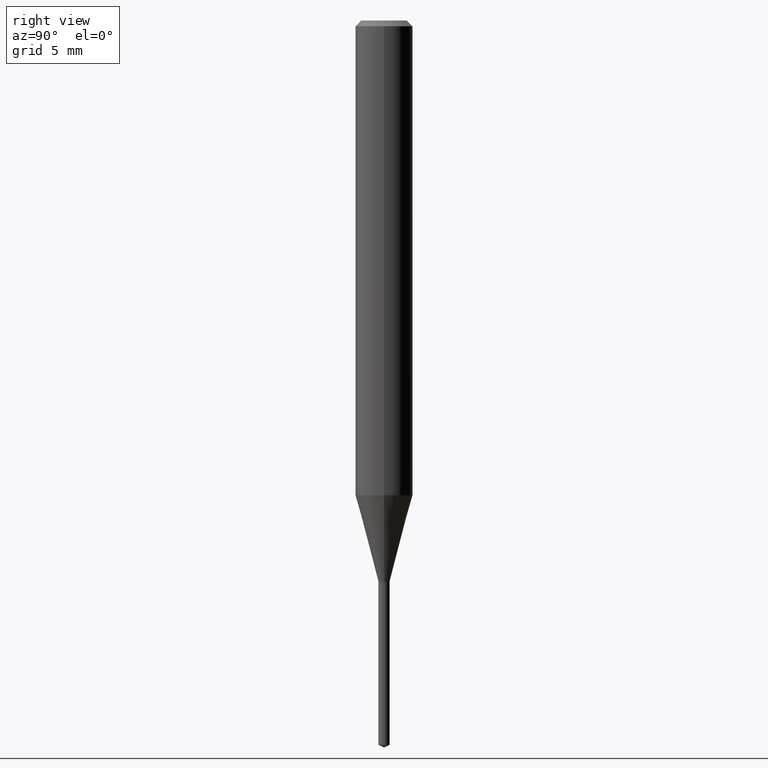
[diagram: clean part render]
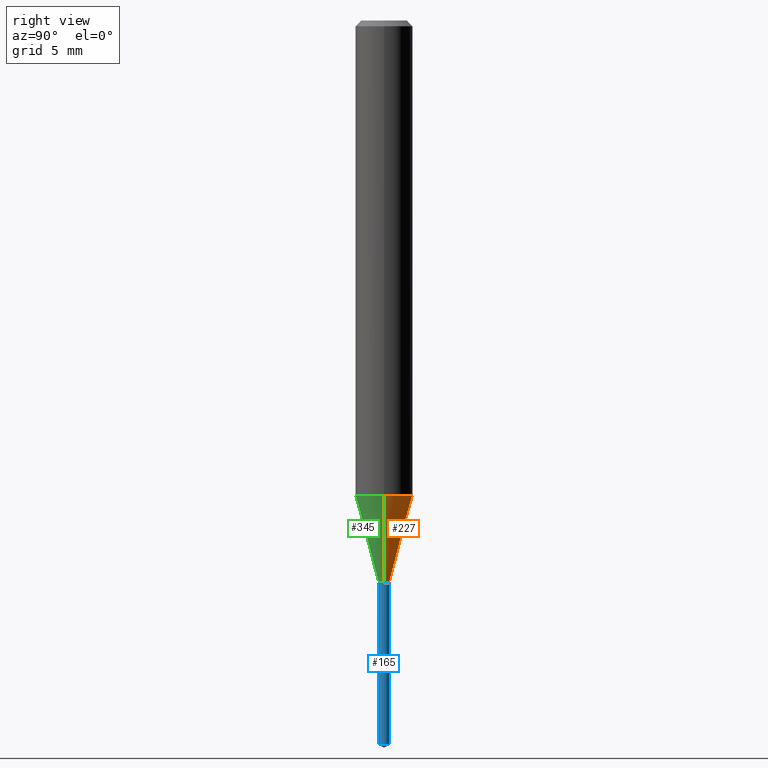
[diagram: same view with three faces highlighted in distinct colors, each labeled with its STEP entity id]
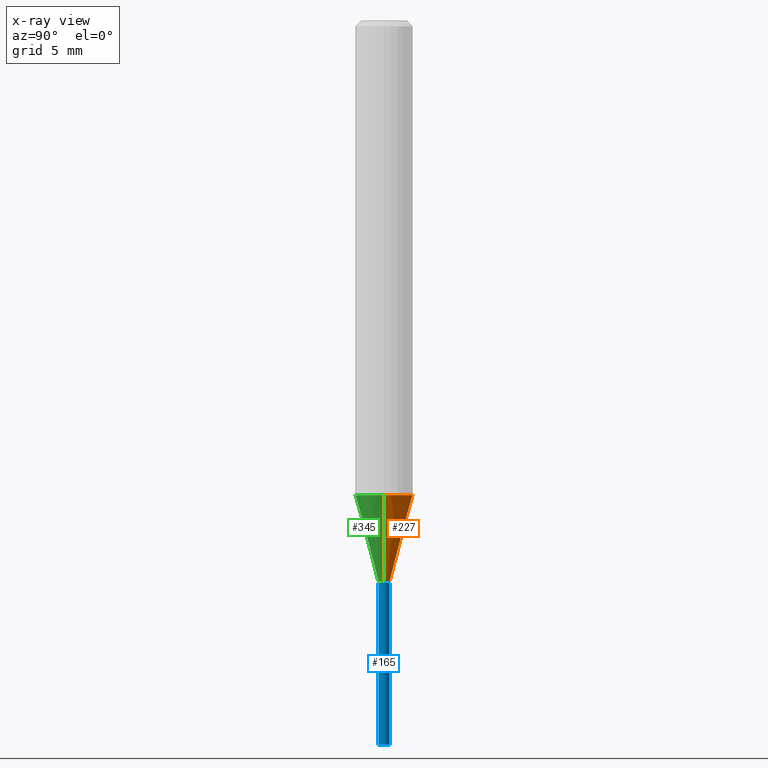
[diagram: x-ray of the same camera — body ghosted, the three highlighted faces saturated]
A machine part, right view with three faces highlighted in distinct colors.
The next image is the same camera in x-ray (body ghosted, the three faces saturated) — at least one of them is partly hidden behind the body in this view.
Their STEP definitions:

[orange] entity #227 — the highlighted conical surface has half-angle 15 deg.
#1 = VERTEX_POINT ( 'NONE', #415 ) ;
#10 = EDGE_CURVE ( 'NONE', #300, #1, #203, .T. ) ;
#12 = ORIENTED_EDGE ( 'NONE', *, *, #171, .T. ) ;
#37 = CARTESIAN_POINT ( 'NONE',  ( 0.05905000000000011628, -3.823221607293418566E-15, -0.9769141891808567069 ) ) ;
#53 = AXIS2_PLACEMENT_3D ( 'NONE', #135, #296, #137 ) ;
#75 = DIRECTION ( 'NONE',  ( 1.000000000000000000, -6.982962677686266711E-15, 0.000000000000000000 ) ) ;
#85 = DIRECTION ( 'NONE',  ( 0.2588190451025213501, 1.565188264969621968E-15, 0.9659258262890682012 ) ) ;
#97 = AXIS2_PLACEMENT_3D ( 'NONE', #141, #434, #409 ) ;
#104 = FACE_OUTER_BOUND ( 'NONE', #338, .T. ) ;
#111 = DIRECTION ( 'NONE',  ( -2.445468806185136597E-29, 3.491481338843145583E-15, 1.000000000000000000 ) ) ;
#135 = CARTESIAN_POINT ( 'NONE',  ( 2.822071002337647144E-29, -4.029169465024989587E-15, -1.153999999999999915 ) ) ;
#137 = DIRECTION ( 'NONE',  ( 1.000000000000000000, -6.982962677686266711E-15, 0.000000000000000000 ) ) ;
#141 = CARTESIAN_POINT ( 'NONE',  ( 2.822071002337647144E-29, -4.029169465024989587E-15, -1.153999999999999915 ) ) ;
#143 = ORIENTED_EDGE ( 'NONE', *, *, #459, .F. ) ;
#171 = EDGE_CURVE ( 'NONE', #342, #1, #266, .T. ) ;
#172 = DIRECTION ( 'NONE',  ( -0.2588190451025213501, 5.211531920934551042E-15, 0.9659258262890682012 ) ) ;
#191 = CARTESIAN_POINT ( 'NONE',  ( -0.01159999999999999920, -3.951983729685082876E-15, -1.153999999999999915 ) ) ;
#203 = CIRCLE ( 'NONE', #258, 0.05905000000000011628 ) ;
#227 = ADVANCED_FACE ( 'NONE', ( #104 ), #268, .T. ) ;
#242 = VECTOR ( 'NONE', #172, 39.37007874015747433 ) ;
#243 = ORIENTED_EDGE ( 'NONE', *, *, #10, .F. ) ;
#258 = AXIS2_PLACEMENT_3D ( 'NONE', #413, #111, #75 ) ;
#266 = LINE ( 'NONE', #375, #242 ) ;
#268 = CONICAL_SURFACE ( 'NONE', #97, 0.01159999999999999920, 0.2617993877991500740 ) ;
#272 = EDGE_CURVE ( 'NONE', #438, #342, #484, .T. ) ;
#279 = VECTOR ( 'NONE', #85, 39.37007874015747433 ) ;
#283 = CARTESIAN_POINT ( 'NONE',  ( 0.01159999999999999920, -4.110171832086150508E-15, -1.153999999999999915 ) ) ;
#296 = DIRECTION ( 'NONE',  ( -2.445468806185136597E-29, 3.491481338843145583E-15, 1.000000000000000000 ) ) ;
#300 = VERTEX_POINT ( 'NONE', #37 ) ;
#338 = EDGE_LOOP ( 'NONE', ( #380, #12, #243, #143 ) ) ;
#342 = VERTEX_POINT ( 'NONE', #191 ) ;
#356 = LINE ( 'NONE', #283, #279 ) ;
#375 = CARTESIAN_POINT ( 'NONE',  ( -0.01159999999999999920, -3.946746507676818365E-15, -1.153999999999999915 ) ) ;
#380 = ORIENTED_EDGE ( 'NONE', *, *, #272, .T. ) ;
#409 = DIRECTION ( 'NONE',  ( 1.000000000000000000, -6.982962677686266711E-15, 0.000000000000000000 ) ) ;
#413 = CARTESIAN_POINT ( 'NONE',  ( 2.389013175961430346E-29, -3.410877661176043645E-15, -0.9769141891808567069 ) ) ;
#415 = CARTESIAN_POINT ( 'NONE',  ( -0.05905000000000011628, -2.991302175709703364E-15, -0.9769141891808567069 ) ) ;
#434 = DIRECTION ( 'NONE',  ( -2.445468806185136597E-29, 3.491481338843145583E-15, 1.000000000000000000 ) ) ;
#438 = VERTEX_POINT ( 'NONE', #460 ) ;
#459 = EDGE_CURVE ( 'NONE', #438, #300, #356, .T. ) ;
#460 = CARTESIAN_POINT ( 'NONE',  ( 0.01159999999999999920, -4.110171832086150508E-15, -1.153999999999999915 ) ) ;
#484 = CIRCLE ( 'NONE', #53, 0.01159999999999999920 ) ;

[blue] entity #165 — the highlighted cylindrical surface (edge-blend (fillet) strip) has radius 0.2946 mm, axis along (-0, 0, 1).
#17 = EDGE_CURVE ( 'NONE', #183, #180, #236, .T. ) ;
#32 = CYLINDRICAL_SURFACE ( 'NONE', #349, 0.01159999999999999920 ) ;
#35 = EDGE_CURVE ( 'NONE', #441, #180, #367, .T. ) ;
#60 = AXIS2_PLACEMENT_3D ( 'NONE', #422, #446, #154 ) ;
#66 = CARTESIAN_POINT ( 'NONE',  ( 8.242295734820810070E-17, 0.01159999999999595729, -1.157499999999999973 ) ) ;
#67 = DIRECTION ( 'NONE',  ( -2.443412120811339220E-29, 3.494426629357685076E-15, 1.000000000000000000 ) ) ;
#77 = LINE ( 'NONE', #275, #278 ) ;
#79 = DIRECTION ( 'NONE',  ( -2.443412120811338940E-29, 3.494426629357684682E-15, 1.000000000000000000 ) ) ;
#80 = VECTOR ( 'NONE', #79, 39.37007874015748143 ) ;
#99 = AXIS2_PLACEMENT_3D ( 'NONE', #416, #67, #490 ) ;
#105 = EDGE_CURVE ( 'NONE', #196, #441, #77, .T. ) ;
#154 = DIRECTION ( 'NONE',  ( -6.982962677686266711E-15, -1.000000000000000000, 0.000000000000000000 ) ) ;
#165 = ADVANCED_FACE ( 'NONE', ( #341 ), #32, .T. ) ;
#180 = VERTEX_POINT ( 'NONE', #66 ) ;
#183 = VERTEX_POINT ( 'NONE', #339 ) ;
#185 = CARTESIAN_POINT ( 'NONE',  ( 2.830630143159295633E-29, -4.041389649710940900E-15, -1.157499999999999973 ) ) ;
#196 = VERTEX_POINT ( 'NONE', #483 ) ;
#228 = CARTESIAN_POINT ( 'NONE',  ( -8.100236706113237413E-17, -0.01160000000000404284, -1.157499999999999973 ) ) ;
#229 = ORIENTED_EDGE ( 'NONE', *, *, #35, .F. ) ;
#236 = LINE ( 'NONE', #390, #80 ) ;
#265 = ORIENTED_EDGE ( 'NONE', *, *, #330, .T. ) ;
#275 = CARTESIAN_POINT ( 'NONE',  ( -8.100236706113237413E-17, -0.01160000000000404284, -1.157499999999999973 ) ) ;
#278 = VECTOR ( 'NONE', #461, 39.37007874015748143 ) ;
#297 = ORIENTED_EDGE ( 'NONE', *, *, #105, .F. ) ;
#330 = EDGE_CURVE ( 'NONE', #196, #183, #358, .T. ) ;
#333 = DIRECTION ( 'NONE',  ( -2.443412120811339220E-29, 3.494426629357685076E-15, 1.000000000000000000 ) ) ;
#339 = CARTESIAN_POINT ( 'NONE',  ( 8.242295734820805139E-17, 0.01159999999999479503, -1.490690831165402130 ) ) ;
#341 = FACE_OUTER_BOUND ( 'NONE', #384, .T. ) ;
#349 = AXIS2_PLACEMENT_3D ( 'NONE', #185, #333, #408 ) ;
#358 = CIRCLE ( 'NONE', #99, 0.01159999999999999920 ) ;
#367 = CIRCLE ( 'NONE', #60, 0.01159999999999999920 ) ;
#370 = ORIENTED_EDGE ( 'NONE', *, *, #17, .T. ) ;
#384 = EDGE_LOOP ( 'NONE', ( #265, #370, #229, #297 ) ) ;
#390 = CARTESIAN_POINT ( 'NONE',  ( 8.242295734819991627E-17, 0.01159999999999595729, -1.157499999999999973 ) ) ;
#408 = DIRECTION ( 'NONE',  ( -6.982962677686266711E-15, -1.000000000000000000, 0.000000000000000000 ) ) ;
#416 = CARTESIAN_POINT ( 'NONE',  ( 3.644752658572043602E-29, -5.205700562793141956E-15, -1.490690831165402130 ) ) ;
#422 = CARTESIAN_POINT ( 'NONE',  ( 2.830630143159295633E-29, -4.041389649710940900E-15, -1.157499999999999973 ) ) ;
#441 = VERTEX_POINT ( 'NONE', #228 ) ;
#446 = DIRECTION ( 'NONE',  ( -2.443412120811339220E-29, 3.494426629357685076E-15, 1.000000000000000000 ) ) ;
#461 = DIRECTION ( 'NONE',  ( -2.443412120811338940E-29, 3.494426629357684682E-15, 1.000000000000000000 ) ) ;
#483 = CARTESIAN_POINT ( 'NONE',  ( -8.100236706112422668E-17, -0.01160000000000520337, -1.490690831165402130 ) ) ;
#490 = DIRECTION ( 'NONE',  ( -6.982962677686266711E-15, -1.000000000000000000, 0.000000000000000000 ) ) ;

[green] entity #345 — the highlighted conical surface has half-angle 15 deg.
#1 = VERTEX_POINT ( 'NONE', #415 ) ;
#18 = CIRCLE ( 'NONE', #469, 0.05905000000000011628 ) ;
#19 = DIRECTION ( 'NONE',  ( -2.445468806185136597E-29, 3.491481338843145583E-15, 1.000000000000000000 ) ) ;
#36 = ORIENTED_EDGE ( 'NONE', *, *, #471, .F. ) ;
#37 = CARTESIAN_POINT ( 'NONE',  ( 0.05905000000000011628, -3.823221607293418566E-15, -0.9769141891808567069 ) ) ;
#39 = DIRECTION ( 'NONE',  ( 1.000000000000000000, -6.982962677686266711E-15, 0.000000000000000000 ) ) ;
#78 = DIRECTION ( 'NONE',  ( -2.445468806185136597E-29, 3.491481338843145583E-15, 1.000000000000000000 ) ) ;
#85 = DIRECTION ( 'NONE',  ( 0.2588190451025213501, 1.565188264969621968E-15, 0.9659258262890682012 ) ) ;
#100 = ORIENTED_EDGE ( 'NONE', *, *, #459, .T. ) ;
#107 = CARTESIAN_POINT ( 'NONE',  ( 2.822071002337647144E-29, -4.029169465024989587E-15, -1.153999999999999915 ) ) ;
#140 = CIRCLE ( 'NONE', #162, 0.01159999999999999920 ) ;
#162 = AXIS2_PLACEMENT_3D ( 'NONE', #366, #335, #476 ) ;
#171 = EDGE_CURVE ( 'NONE', #342, #1, #266, .T. ) ;
#172 = DIRECTION ( 'NONE',  ( -0.2588190451025213501, 5.211531920934551042E-15, 0.9659258262890682012 ) ) ;
#191 = CARTESIAN_POINT ( 'NONE',  ( -0.01159999999999999920, -3.951983729685082876E-15, -1.153999999999999915 ) ) ;
#209 = CARTESIAN_POINT ( 'NONE',  ( 2.389013175961430346E-29, -3.410877661176043645E-15, -0.9769141891808567069 ) ) ;
#233 = EDGE_LOOP ( 'NONE', ( #403, #276, #100, #36 ) ) ;
#242 = VECTOR ( 'NONE', #172, 39.37007874015747433 ) ;
#266 = LINE ( 'NONE', #375, #242 ) ;
#267 = EDGE_CURVE ( 'NONE', #342, #438, #140, .T. ) ;
#276 = ORIENTED_EDGE ( 'NONE', *, *, #267, .T. ) ;
#279 = VECTOR ( 'NONE', #85, 39.37007874015747433 ) ;
#283 = CARTESIAN_POINT ( 'NONE',  ( 0.01159999999999999920, -4.110171832086150508E-15, -1.153999999999999915 ) ) ;
#300 = VERTEX_POINT ( 'NONE', #37 ) ;
#335 = DIRECTION ( 'NONE',  ( -2.445468806185136597E-29, 3.491481338843145583E-15, 1.000000000000000000 ) ) ;
#340 = CONICAL_SURFACE ( 'NONE', #462, 0.01159999999999999920, 0.2617993877991500740 ) ;
#342 = VERTEX_POINT ( 'NONE', #191 ) ;
#345 = ADVANCED_FACE ( 'NONE', ( #379 ), #340, .T. ) ;
#356 = LINE ( 'NONE', #283, #279 ) ;
#366 = CARTESIAN_POINT ( 'NONE',  ( 2.822071002337647144E-29, -4.029169465024989587E-15, -1.153999999999999915 ) ) ;
#375 = CARTESIAN_POINT ( 'NONE',  ( -0.01159999999999999920, -3.946746507676818365E-15, -1.153999999999999915 ) ) ;
#379 = FACE_OUTER_BOUND ( 'NONE', #233, .T. ) ;
#403 = ORIENTED_EDGE ( 'NONE', *, *, #171, .F. ) ;
#415 = CARTESIAN_POINT ( 'NONE',  ( -0.05905000000000011628, -2.991302175709703364E-15, -0.9769141891808567069 ) ) ;
#421 = DIRECTION ( 'NONE',  ( 1.000000000000000000, -6.982962677686266711E-15, 0.000000000000000000 ) ) ;
#438 = VERTEX_POINT ( 'NONE', #460 ) ;
#459 = EDGE_CURVE ( 'NONE', #438, #300, #356, .T. ) ;
#460 = CARTESIAN_POINT ( 'NONE',  ( 0.01159999999999999920, -4.110171832086150508E-15, -1.153999999999999915 ) ) ;
#462 = AXIS2_PLACEMENT_3D ( 'NONE', #107, #78, #39 ) ;
#469 = AXIS2_PLACEMENT_3D ( 'NONE', #209, #19, #421 ) ;
#471 = EDGE_CURVE ( 'NONE', #1, #300, #18, .T. ) ;
#476 = DIRECTION ( 'NONE',  ( 1.000000000000000000, -6.982962677686266711E-15, 0.000000000000000000 ) ) ;